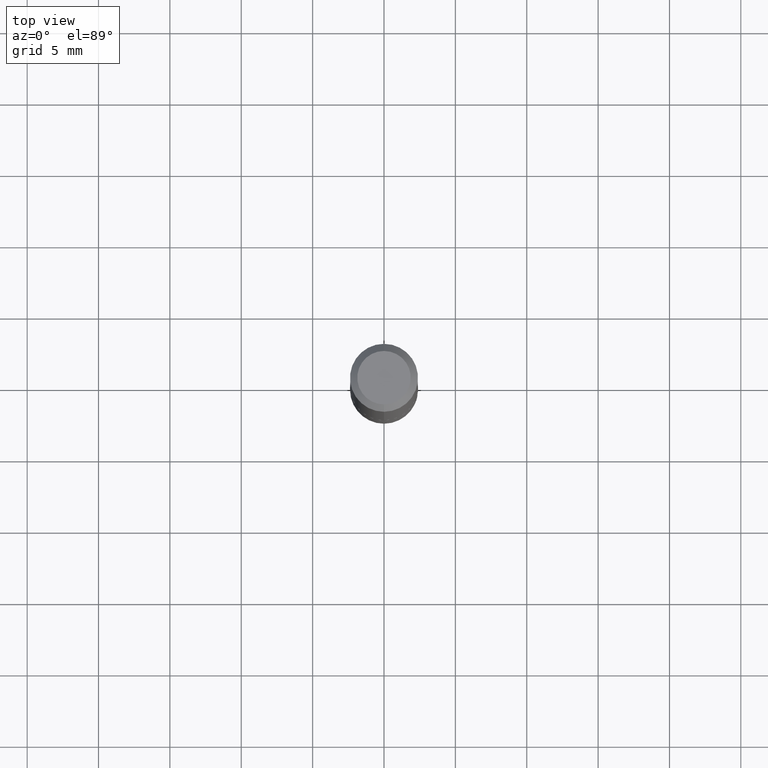
[diagram: clean part render]
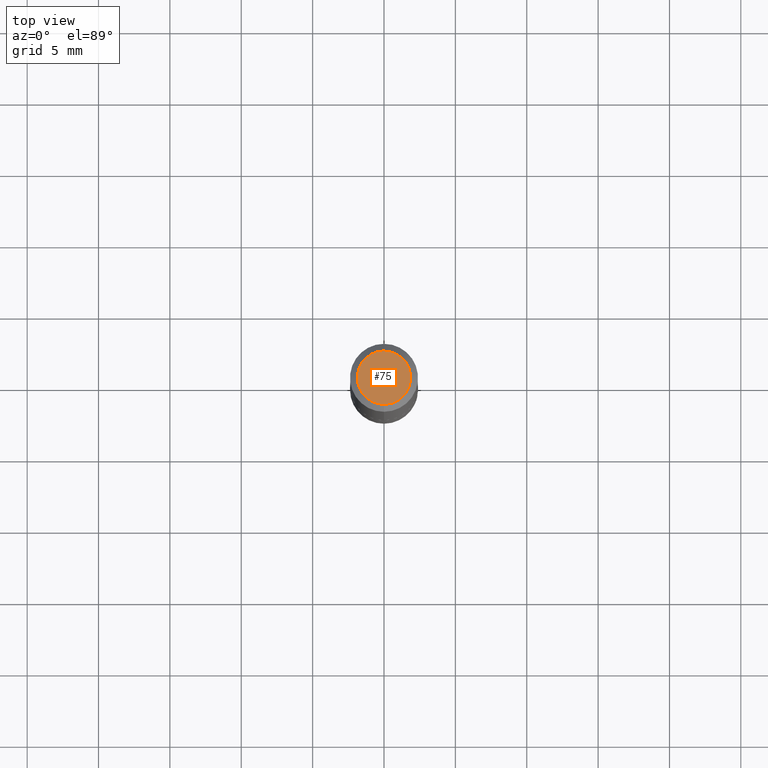
[diagram: same view with one face highlighted and labeled with its STEP entity id]
A machine part, top view. The second image highlights one B-rep face of the part: STEP entity #75.
In plain terms, the highlighted planar face has unit normal (0, -0, -1).
Its self-contained STEP definition (entity closure, byte-faithful):
#3 = EDGE_LOOP ( 'NONE', ( #261, #167 ) ) ;
#33 = EDGE_CURVE ( 'NONE', #144, #256, #119, .T. ) ;
#37 = AXIS2_PLACEMENT_3D ( 'NONE', #322, #98, #227 ) ;
#47 = DIRECTION ( 'NONE',  ( -2.444797333483953649E-29, 3.492442925969092226E-15, 1.000000000000000000 ) ) ;
#75 = ADVANCED_FACE ( 'NONE', ( #248 ), #122, .F. ) ;
#98 = DIRECTION ( 'NONE',  ( -2.444797333483953649E-29, 3.492442925969092226E-15, 1.000000000000000000 ) ) ;
#119 = CIRCLE ( 'NONE', #134, 0.07375000000000006550 ) ;
#122 = PLANE ( 'NONE',  #209 ) ;
#133 = CARTESIAN_POINT ( 'NONE',  ( -5.745667073133657526E-16, -0.07375000000000006550, 2.320275079001568932E-16 ) ) ;
#134 = AXIS2_PLACEMENT_3D ( 'NONE', #365, #47, #306 ) ;
#144 = VERTEX_POINT ( 'NONE', #310 ) ;
#155 = CARTESIAN_POINT ( 'NONE',  ( 5.149934974793625841E-16, 0.07375000000000006550, -2.703377447352527410E-16 ) ) ;
#167 = ORIENTED_EDGE ( 'NONE', *, *, #286, .T. ) ;
#209 = AXIS2_PLACEMENT_3D ( 'NONE', #155, #374, #406 ) ;
#227 = DIRECTION ( 'NONE',  ( -6.982962677686265922E-15, -1.000000000000000000, 3.492442925969092226E-15 ) ) ;
#248 = FACE_OUTER_BOUND ( 'NONE', #3, .T. ) ;
#256 = VERTEX_POINT ( 'NONE', #133 ) ;
#261 = ORIENTED_EDGE ( 'NONE', *, *, #33, .T. ) ;
#286 = EDGE_CURVE ( 'NONE', #256, #144, #370, .T. ) ;
#306 = DIRECTION ( 'NONE',  ( -6.982962677686265922E-15, -1.000000000000000000, 3.492442925969092226E-15 ) ) ;
#310 = CARTESIAN_POINT ( 'NONE',  ( 5.848231242562252906E-16, 0.07375000000000006550, -2.831078236802846410E-16 ) ) ;
#322 = CARTESIAN_POINT ( 'NONE',  ( 6.244050990638739127E-46, -8.919754375128736204E-32, -2.554015789006390164E-17 ) ) ;
#365 = CARTESIAN_POINT ( 'NONE',  ( 6.244050990638739127E-46, -8.919754375128736204E-32, -2.554015789006390164E-17 ) ) ;
#370 = CIRCLE ( 'NONE', #37, 0.07375000000000006550 ) ;
#374 = DIRECTION ( 'NONE',  ( 2.444797333483953089E-29, -3.492442925969092620E-15, -1.000000000000000000 ) ) ;
#406 = DIRECTION ( 'NONE',  ( 6.982962677686265922E-15, 1.000000000000000000, -3.492442925969092620E-15 ) ) ;